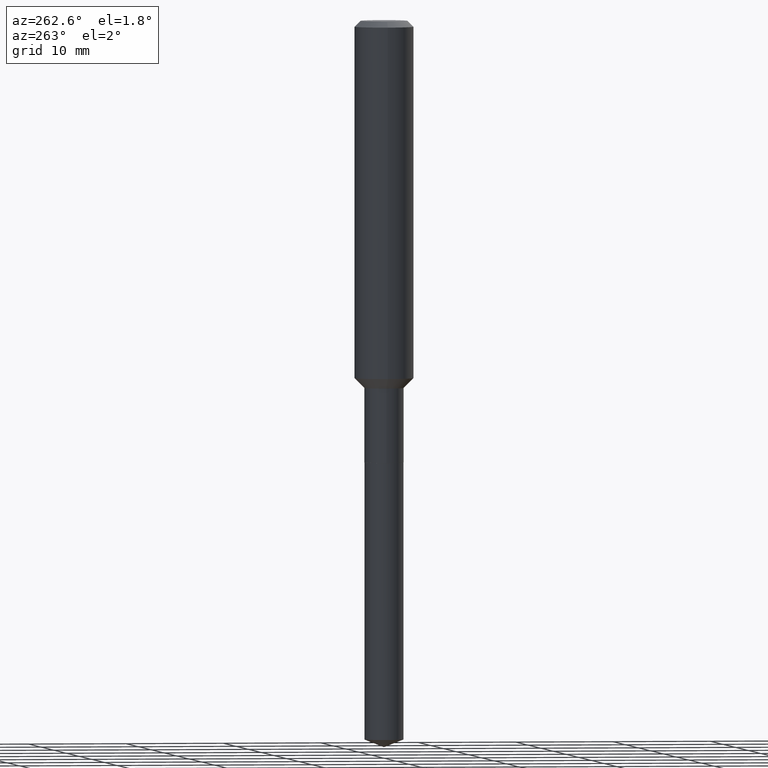
[diagram: clean part render]
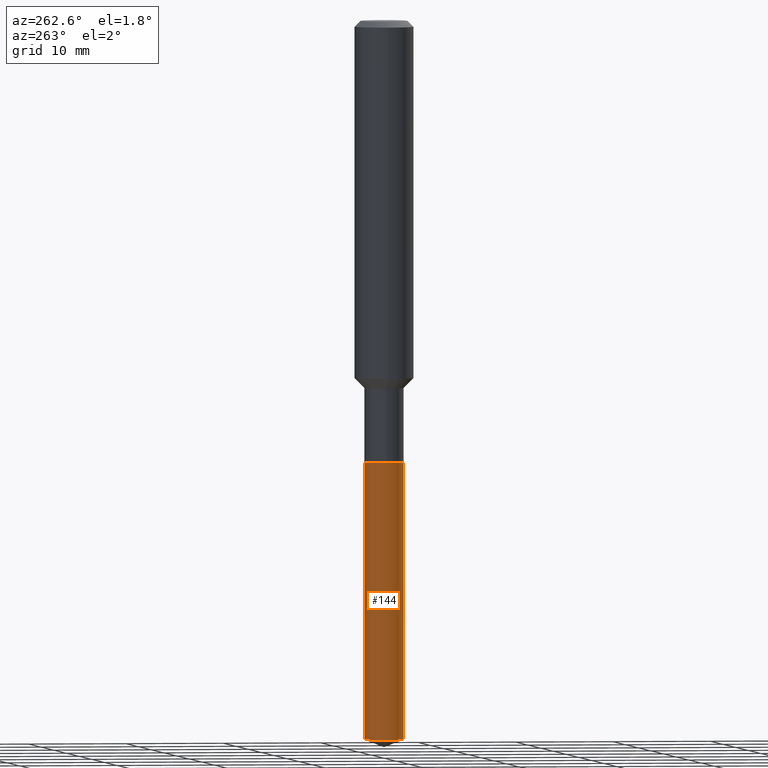
[diagram: same view with one face highlighted and labeled with its STEP entity id]
A machine part, auxiliary view. The second image highlights one B-rep face of the part: STEP entity #144.
In plain terms, the highlighted cylindrical surface (edge-blend (fillet) strip) has radius 2.0002 mm, axis along (-0, 0, 1).
Its self-contained STEP definition (entity closure, byte-faithful):
#6 = VERTEX_POINT ( 'NONE', #11 ) ;
#9 = VECTOR ( 'NONE', #308, 39.37007874015748143 ) ;
#11 = CARTESIAN_POINT ( 'NONE',  ( -5.499083108677227426E-16, -0.07875000000001002032, -2.881979550045322025 ) ) ;
#40 = DIRECTION ( 'NONE',  ( -2.445392125264201489E-29, 3.491591150286331850E-15, 1.000000000000000000 ) ) ;
#49 = EDGE_CURVE ( 'NONE', #411, #6, #241, .T. ) ;
#62 = DIRECTION ( 'NONE',  ( -6.982962677686264344E-15, -1.000000000000000000, 3.469013325287953293E-15 ) ) ;
#68 = EDGE_CURVE ( 'NONE', #6, #422, #398, .T. ) ;
#98 = CARTESIAN_POINT ( 'NONE',  ( 5.595524044111494048E-16, 0.07874999999999381106, -1.771300000000000097 ) ) ;
#102 = CARTESIAN_POINT ( 'NONE',  ( 4.331658896395732410E-29, -6.184460895492863090E-15, -1.771299999999999653 ) ) ;
#107 = CYLINDRICAL_SURFACE ( 'NONE', #285, 0.07875000000000000056 ) ;
#112 = DIRECTION ( 'NONE',  ( -6.982962677686264344E-15, -1.000000000000000000, 6.938026650575906587E-15 ) ) ;
#118 = LINE ( 'NONE', #351, #9 ) ;
#131 = CARTESIAN_POINT ( 'NONE',  ( -5.499083108677500569E-16, -0.07875000000000617617, -1.771299999999999430 ) ) ;
#139 = VERTEX_POINT ( 'NONE', #98 ) ;
#144 = ADVANCED_FACE ( 'NONE', ( #214 ), #107, .T. ) ;
#151 = ORIENTED_EDGE ( 'NONE', *, *, #420, .F. ) ;
#152 = CARTESIAN_POINT ( 'NONE',  ( -5.499083108677500569E-16, -0.07875000000000617617, -1.771299999999999430 ) ) ;
#182 = CIRCLE ( 'NONE', #249, 0.07875000000000000056 ) ;
#185 = ORIENTED_EDGE ( 'NONE', *, *, #49, .T. ) ;
#186 = DIRECTION ( 'NONE',  ( -6.982962677686264344E-15, -1.000000000000000000, 3.469013325287953293E-15 ) ) ;
#214 = FACE_OUTER_BOUND ( 'NONE', #252, .T. ) ;
#226 = ORIENTED_EDGE ( 'NONE', *, *, #275, .F. ) ;
#241 = CIRCLE ( 'NONE', #310, 0.07875000000000000056 ) ;
#243 = DIRECTION ( 'NONE',  ( -2.445392125264201489E-29, 3.491591150286331850E-15, 1.000000000000000000 ) ) ;
#249 = AXIS2_PLACEMENT_3D ( 'NONE', #102, #405, #186 ) ;
#252 = EDGE_LOOP ( 'NONE', ( #151, #185, #452, #226 ) ) ;
#275 = EDGE_CURVE ( 'NONE', #139, #422, #182, .T. ) ;
#285 = AXIS2_PLACEMENT_3D ( 'NONE', #324, #403, #62 ) ;
#308 = DIRECTION ( 'NONE',  ( -2.445392125264201489E-29, 3.491591150286331850E-15, 1.000000000000000000 ) ) ;
#310 = AXIS2_PLACEMENT_3D ( 'NONE', #418, #40, #112 ) ;
#324 = CARTESIAN_POINT ( 'NONE',  ( 4.331658896395732410E-29, -6.184460895492863090E-15, -1.771299999999999653 ) ) ;
#351 = CARTESIAN_POINT ( 'NONE',  ( 5.595524044111220905E-16, 0.07874999999999381106, -1.771300000000000097 ) ) ;
#398 = LINE ( 'NONE', #131, #448 ) ;
#403 = DIRECTION ( 'NONE',  ( -2.445392125264201489E-29, 3.491591150286331850E-15, 1.000000000000000000 ) ) ;
#405 = DIRECTION ( 'NONE',  ( -2.445392125264201489E-29, 3.491591150286331850E-15, 1.000000000000000000 ) ) ;
#411 = VERTEX_POINT ( 'NONE', #419 ) ;
#418 = CARTESIAN_POINT ( 'NONE',  ( 7.047705921768549734E-29, -1.006249978323511518E-14, -2.881979550045322469 ) ) ;
#419 = CARTESIAN_POINT ( 'NONE',  ( 5.595524044111491089E-16, 0.07874999999998993916, -2.881979550045322913 ) ) ;
#420 = EDGE_CURVE ( 'NONE', #411, #139, #118, .T. ) ;
#422 = VERTEX_POINT ( 'NONE', #152 ) ;
#448 = VECTOR ( 'NONE', #243, 39.37007874015748143 ) ;
#452 = ORIENTED_EDGE ( 'NONE', *, *, #68, .T. ) ;